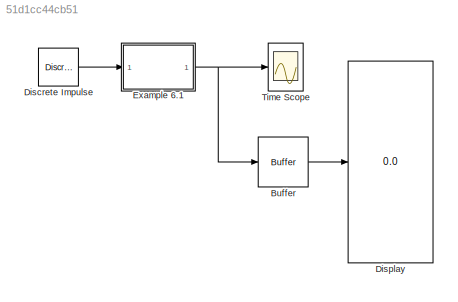
MODEL slx_51d1cc44cb51
KIND model
BLOCK [Buffer] Buffer
  N = 10
BLOCK [Reference] Discrete Impulse  REF=dspsrcs4/Discrete 
Impulse
  Delay = 0
  FrameSample = 1
  LastOutDataTypeStr = double
  OutDataTypeStr = double
  Ports = [0, 1]
  SampleTime = 1
  SourceBlock = dspsrcs4/Discrete \nImpulse
  SourceType = Discrete Impulse
  additionalParams = off
  allowOverrides = on
  dataType = double
  fracBitsMode = Best precision
  isSigned = on
  numFracBits = 15
  udDataType = sfix(16)
  wordLen = 16
BLOCK [Display] Display
  Decimation = 1
  Lockdown = off
  Ports = [1]
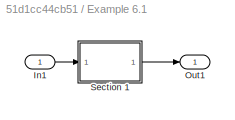
BLOCK [SubSystem] Example 6.1
  FunctionWithSeparateData = off
  MaskHideContents = off
  MinAlgLoopOccurrences = off
  Opaque = off
  Ports = [1, 1]
  PropExecContextOutsideSubsystem = off
  RTWSystemCode = Auto
  RequestExecContextInheritance = off
BLOCK [Inport] Example 6.1/In1
  IconDisplay = Port number
BLOCK [Outport] Example 6.1/Out1
  IconDisplay = Port number
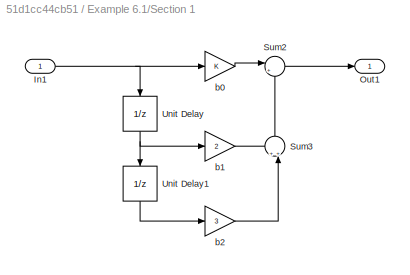
BLOCK [SubSystem] Example 6.1/Section 1
  FunctionWithSeparateData = off
  MaskHideContents = off
  MinAlgLoopOccurrences = off
  Opaque = off
  Ports = [1, 1]
  PropExecContextOutsideSubsystem = off
  RTWSystemCode = Auto
  RequestExecContextInheritance = off
BLOCK [Inport] Example 6.1/Section 1/In1
  IconDisplay = Port number
BLOCK [Outport] Example 6.1/Section 1/Out1
  IconDisplay = Port number
BLOCK [Sum] Example 6.1/Section 1/Sum2
  IconShape = round
  InputSameDT = off
  Inputs = |++
  OutDataTypeStr = Inherit: Inherit via internal rule
  Ports = [2, 1]
  SaturateOnIntegerOverflow = off
BLOCK [Sum] Example 6.1/Section 1/Sum3
  IconShape = round
  InputSameDT = off
  Inputs = ++|
  OutDataTypeStr = Inherit: Inherit via internal rule
  Ports = [2, 1]
  SaturateOnIntegerOverflow = off
BLOCK [UnitDelay] Example 6.1/Section 1/Unit Delay
  SampleTime = -1
BLOCK [UnitDelay] Example 6.1/Section 1/Unit Delay1
  SampleTime = -1
BLOCK [Gain] Example 6.1/Section 1/b0
  OutDataTypeStr = Inherit: Inherit via internal rule
  ParamDataTypeStr = Inherit: Inherit via internal rule
  SaturateOnIntegerOverflow = off
BLOCK [Gain] Example 6.1/Section 1/b1
  Gain = 2
  OutDataTypeStr = Inherit: Inherit via internal rule
  ParamDataTypeStr = Inherit: Inherit via internal rule
  SaturateOnIntegerOverflow = off
BLOCK [Gain] Example 6.1/Section 1/b2
  Gain = 3
  OutDataTypeStr = Inherit: Inherit via internal rule
  ParamDataTypeStr = Inherit: Inherit via internal rule
  SaturateOnIntegerOverflow = off
BLOCK [Scope] Time Scope
  DataFormat = Structure
  Floating = off
  NumInputPorts = 1
  Ports = [1]
  SampleTime = 0
  ShowLegends = off
LINE Buffer:1 -> Display:1
LINE Discrete Impulse:1 -> Example 6.1:1
LINE Example 6.1/In1:1 -> Example 6.1/Section 1:1
NET Example 6.1/Section 1/In1:1 -> Example 6.1/Section 1/Unit Delay:1, Example 6.1/Section 1/b0:1
LINE Example 6.1/Section 1/Sum2:1 -> Example 6.1/Section 1/Out1:1
LINE Example 6.1/Section 1/Sum3:1 -> Example 6.1/Section 1/Sum2:2
LINE Example 6.1/Section 1/Unit Delay1:1 -> Example 6.1/Section 1/b2:1
NET Example 6.1/Section 1/Unit Delay:1 -> Example 6.1/Section 1/Unit Delay1:1, Example 6.1/Section 1/b1:1
LINE Example 6.1/Section 1/b0:1 -> Example 6.1/Section 1/Sum2:1
LINE Example 6.1/Section 1/b1:1 -> Example 6.1/Section 1/Sum3:1
LINE Example 6.1/Section 1/b2:1 -> Example 6.1/Section 1/Sum3:2
LINE Example 6.1/Section 1:1 -> Example 6.1/Out1:1
NET Example 6.1:1 -> Buffer:1, Time Scope:1
note: NET lines group one-source signal fan-out (src -> all destinations, sorted); 1:1 wires keep LINE
